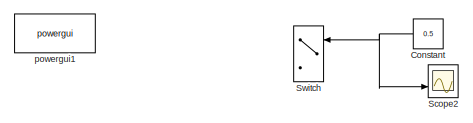
[diagram: root canvas - part 1/6, top right region]
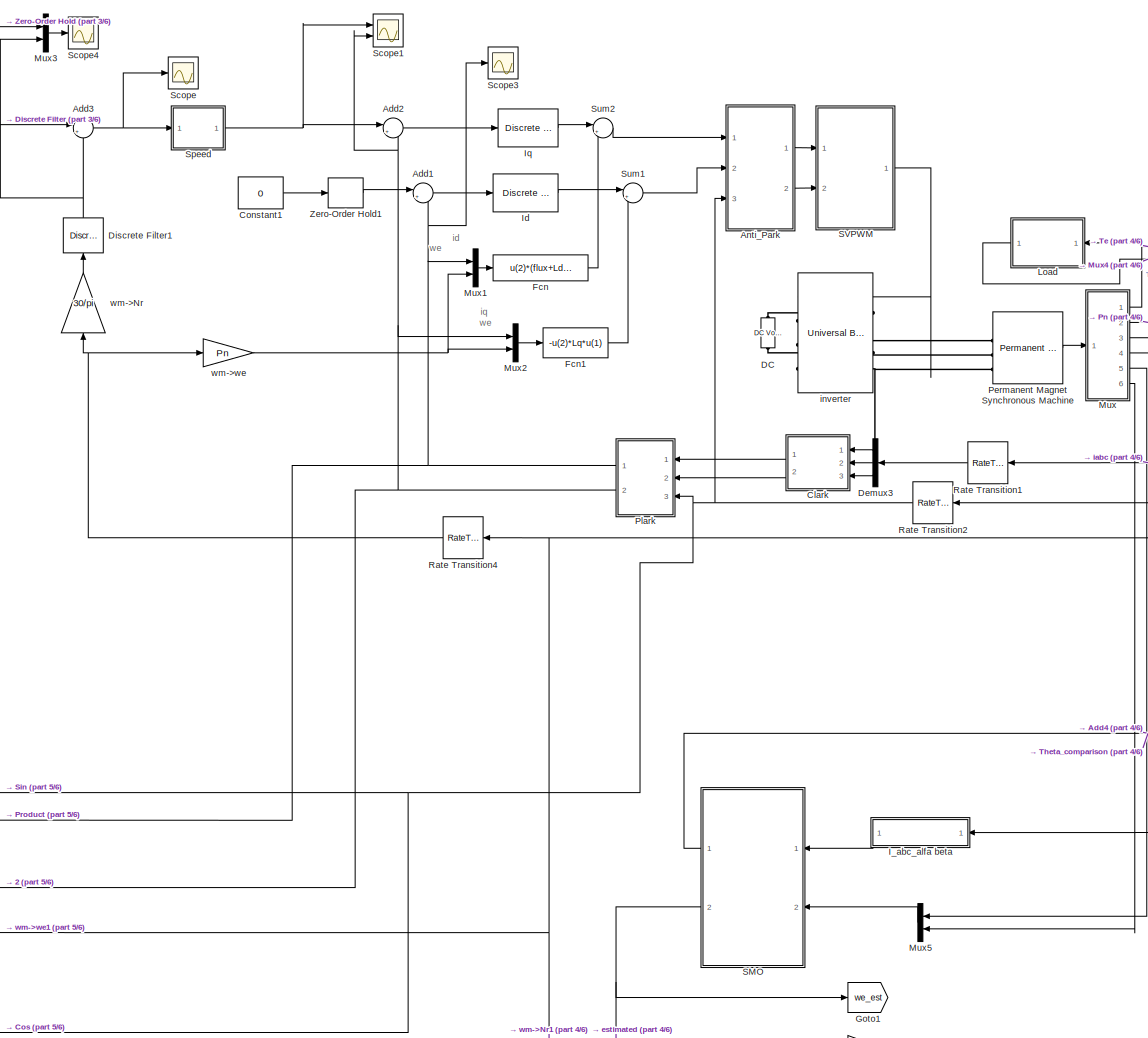
[diagram: root canvas - part 2/6, central region]
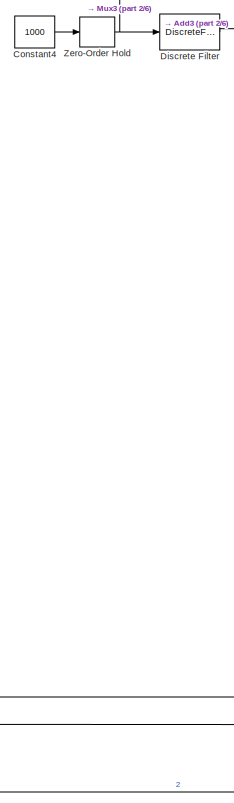
[diagram: root canvas - part 3/6, central region]
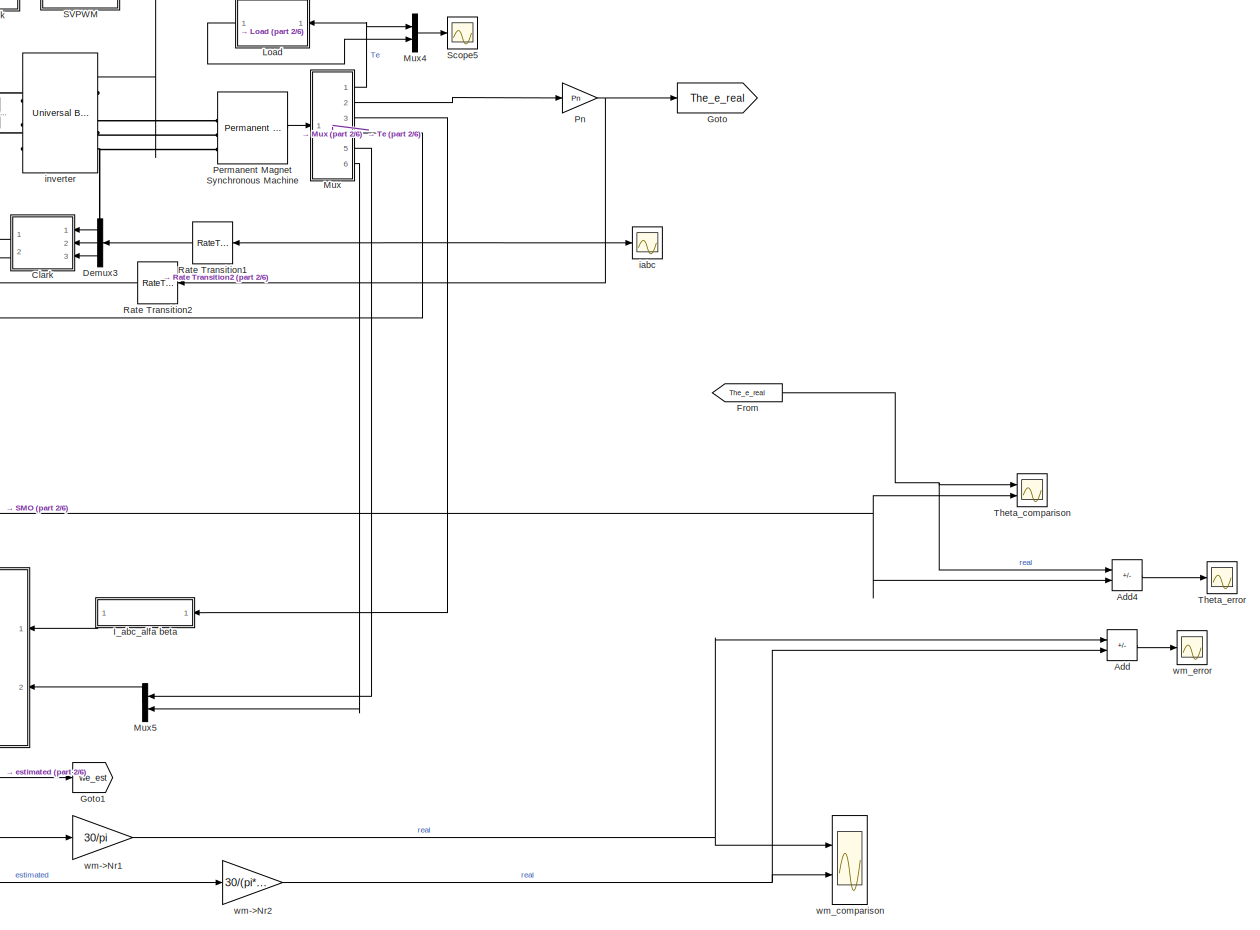
[diagram: root canvas - part 4/6, middle right region]
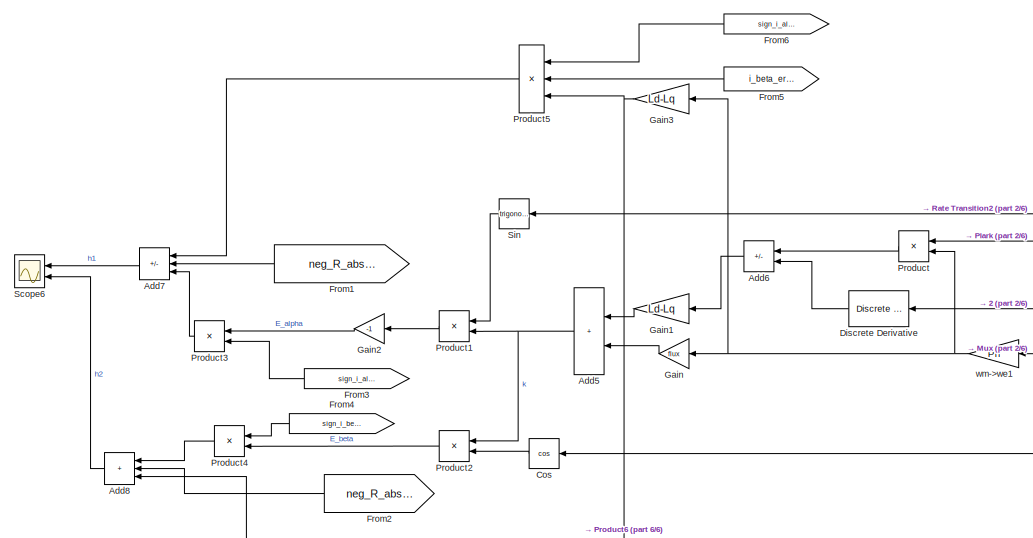
[diagram: root canvas - part 5/6, bottom left region]
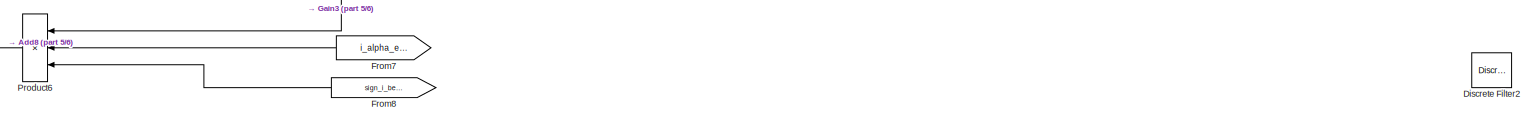
[diagram: root canvas - part 6/6, bottom left region]
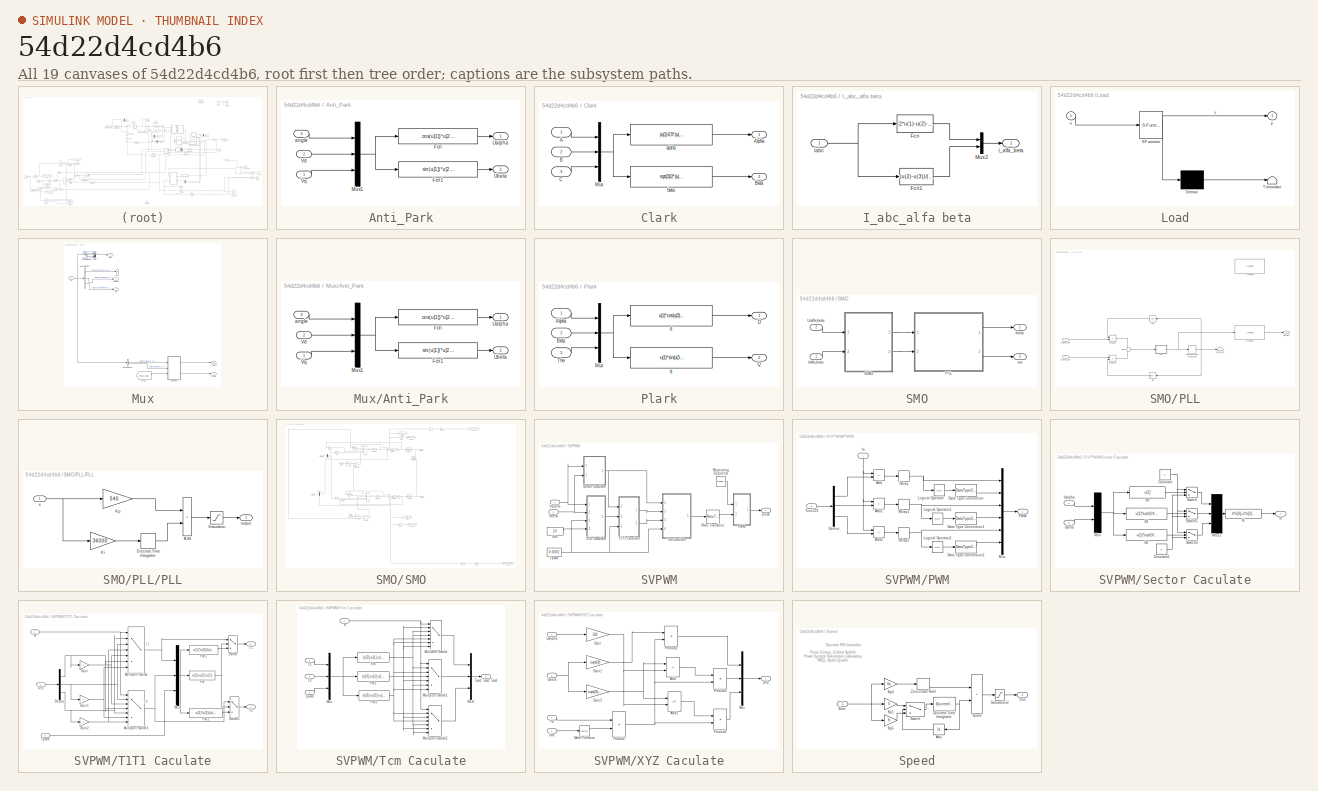
[diagram: thumbnail index - all 19 canvases of the model, root first then tree order]
MODEL slx_54d22d4cd4b6
KIND model
CONFIG AbsTol = auto
CONFIG EnableMultiTasking = on
CONFIG FixedStep = 1e-6
CONFIG MaxStep = auto
CONFIG MinStep = auto
CONFIG PreLoadFcn = flux =0.0037\nLd =1.2050e-04\nLq =1.8000e-04\nPn =4\nR =0.0830\nTs =5.0000e-05
CONFIG RelTol = 1e-4
CONFIG SampleTimeConstraint = Unconstrained
CONFIG SolverName = FixedStepAuto
CONFIG StartTime = 0.0
CONFIG StopTime = 0.5
BLOCK [Sum] Add
  IconShape = rectangular
  Inputs = +-
  Ports = [2, 1]
BLOCK [Sum] Add1
  Inputs = |+-
  Ports = [2, 1]
BLOCK [Sum] Add2
  Inputs = |+-
  Ports = [2, 1]
BLOCK [Sum] Add3
  Inputs = |+-
  Ports = [2, 1]
BLOCK [Sum] Add4
  IconShape = rectangular
  Inputs = +-
  Ports = [2, 1]
BLOCK [Sum] Add5
  IconShape = rectangular
  NameLocation = top
  Ports = [2, 1]
BLOCK [Sum] Add6
  IconShape = rectangular
  Inputs = +-
  NameLocation = top
  Ports = [2, 1]
BLOCK [Sum] Add7
  IconShape = rectangular
  Inputs = -++
  NameLocation = top
  Ports = [3, 1]
BLOCK [Sum] Add8
  IconShape = rectangular
  Inputs = +++
  NameLocation = top
  Ports = [3, 1]
BLOCK [SubSystem] Anti_Park
  Ports = [3, 2]
  RequestExecContextInheritance = off
BLOCK [Fcn] Anti_Park/Fcn
  Expr = cos(u[1])*u[2]-sin(u[1])*u[3]
BLOCK [Fcn] Anti_Park/Fcn1
  Expr = sin(u[1])*u[2]+cos(u[1])*u[3]
BLOCK [Mux] Anti_Park/Mux1
  DisplayOption = bar
  Inputs = 3
  Ports = [3, 1]
BLOCK [Outport] Anti_Park/Ualpha
BLOCK [Outport] Anti_Park/Ubeta
  Port = 2
BLOCK [Inport] Anti_Park/Vd
  Port = 2
BLOCK [Inport] Anti_Park/Vq
BLOCK [Inport] Anti_Park/angle
  Port = 3
BLOCK [SubSystem] Clark
  Ports = [3, 2]
  RequestExecContextInheritance = off
BLOCK [Inport] Clark/A
BLOCK [Outport] Clark/Alpha
BLOCK [Inport] Clark/B
  Port = 2
BLOCK [Outport] Clark/Beta
  Port = 2
BLOCK [Inport] Clark/C
  Port = 3
BLOCK [Mux] Clark/Mux
  DisplayOption = bar
  Inputs = 3
  Ports = [3, 1]
BLOCK [Fcn] Clark/alpha
  Expr = (u(1)-0.5*(u(2)+u(3)))*2/3
BLOCK [Fcn] Clark/beta
  Expr = sqrt(3)/2*(u(2)-u(3))*2/3
BLOCK [Constant] Constant
  Commented = on
  NameLocation = top
  Value = 0.5
BLOCK [Constant] Constant1
  Value = 0
BLOCK [Constant] Constant4
  Value = 1000
BLOCK [Trigonometry] Cos
  NameLocation = top
  Operator = cos
  Ports = [1, 1]
BLOCK [Reference] DC  REF=spsDCVoltageSourceLib/DC Voltage Source
  NameLocation = left
  Ports = [0, 0, 0, 0, 0, 1, 1]
  SourceBlock = spsDCVoltageSourceLib/DC Voltage Source
  SourceProductBaseCode = PS
  SourceType = DC Voltage Source
BLOCK [Demux] Demux3
  NameLocation = top
  Outputs = 3
  Ports = [1, 3]
BLOCK [Reference] Discrete Derivative  REF=simulink/Discrete/Discrete Derivative
  NameLocation = top
  Ports = [1, 1]
  SourceBlock = simulink/Discrete/Discrete Derivative
  SourceProductBaseCode = SL
  SourceType = Discrete Derivative
BLOCK [DiscreteFilter] Discrete Filter
  Denominator = [1 -0.995]
  InitialStates = 0.001
  InputPortMap = u0
  Numerator = [0 0.005]
  Ports = [1, 1]
BLOCK [DiscreteFilter] Discrete Filter1
  Denominator = [1 -0.95]
  InputPortMap = u0
  NameLocation = right
  Numerator = [0 0.05]
  Ports = [1, 1]
BLOCK [DiscreteFilter] Discrete Filter2
  Denominator = [1 -0.95]
  InputPortMap = u0
  NameLocation = left
  Numerator = [0 0.05]
  Ports = [1, 1]
BLOCK [Fcn] Fcn
  Expr = u(2)*(flux+Ld*u(1))
BLOCK [Fcn] Fcn1
  Expr = -u(2)*Lq*u(1)
BLOCK [From] From
  GotoTag = The_e_real
  TagVisibility = global
BLOCK [From] From1
  GotoTag = neg_R_abs_alpha_error
  NameLocation = top
  TagVisibility = global
BLOCK [From] From2
  GotoTag = neg_R_abs_beta_error
  NameLocation = top
  TagVisibility = global
BLOCK [From] From3
  GotoTag = sign_i_alpha_error
  NameLocation = top
  TagVisibility = global
BLOCK [From] From4
  GotoTag = sign_i_beta_error
  NameLocation = top
  TagVisibility = global
BLOCK [From] From5
  GotoTag = i_beta_error
  NameLocation = top
  TagVisibility = global
BLOCK [From] From6
  GotoTag = sign_i_alpha_error
  NameLocation = top
  TagVisibility = global
BLOCK [From] From7
  GotoTag = i_alpha_error
  NameLocation = top
  TagVisibility = global
BLOCK [From] From8
  GotoTag = sign_i_beta_error
  NameLocation = top
  TagVisibility = global
BLOCK [Gain] Gain
  Gain = flux
  NameLocation = top
BLOCK [Gain] Gain1
  Gain = Ld-Lq
  NameLocation = top
BLOCK [Gain] Gain2
  Gain = -1
  NameLocation = top
BLOCK [Gain] Gain3
  Gain = Ld-Lq
  NameLocation = top
BLOCK [Goto] Goto
  GotoTag = The_e_real
  TagVisibility = global
BLOCK [Goto] Goto1
  GotoTag = we_est
  TagVisibility = global
BLOCK [SubSystem] I_abc_alfa beta
  NameLocation = top
  Ports = [1, 1]
  RequestExecContextInheritance = off
BLOCK [Fcn] I_abc_alfa beta/Fcn
  Expr = (2*u(1)-u(2)-u(3))/3
BLOCK [Fcn] I_abc_alfa beta/Fcn1
  Expr = (u(2)-u(3))/(3^(1/2))
BLOCK [Mux] I_abc_alfa beta/Mux2
  DisplayOption = bar
  Inputs = 2
  Ports = [2, 1]
BLOCK [Outport] I_abc_alfa beta/i_alfa_beta
BLOCK [Inport] I_abc_alfa beta/iabc
BLOCK [Reference] Id  REF=powerlib_extras/Discrete 
Control Blocks/Discrete
PI Controller
  Ports = [1, 1]
  SourceBlock = powerlib_extras/Discrete \nControl Blocks/Discrete\nPI Controller
  SourceProductBaseCode = PS
  SourceType = Discrete PI Controller
BLOCK [Reference] Iq  REF=powerlib_extras/Discrete 
Control Blocks/Discrete
PI Controller
  Ports = [1, 1]
  SourceBlock = powerlib_extras/Discrete \nControl Blocks/Discrete\nPI Controller
  SourceProductBaseCode = PS
  SourceType = Discrete PI Controller
BLOCK [SubSystem] Load
  ErrorFcn = Stateflow.Translate.translate
  PermitHierarchicalResolution = ExplicitOnly
  Ports = [1, 1]
  RequestExecContextInheritance = off
  SFBlockType = MATLAB Function
  TreatAsAtomicUnit = on
BLOCK [Demux] Load/ Demux 
  Outputs = 1
  Ports = [1, 1]
BLOCK [S-Function] Load/ SFunction 
  EnableBusSupport = on
  FunctionName = sf_sfun
  PortCounts = [1 2]
  Ports = [1, 2]
  SFcnIsStateOwnerBlock = off
  SFunctionDeploymentMode = off
  Tag = Stateflow S-Function 2
BLOCK [Terminator] Load/ Terminator 
BLOCK [Inport] Load/u
BLOCK [Outport] Load/y
BLOCK [SubSystem] Mux
  Ports = [1, 6]
  RequestExecContextInheritance = off
BLOCK [SubSystem] Mux/Anti_Park
  Ports = [3, 2]
  RequestExecContextInheritance = off
BLOCK [Fcn] Mux/Anti_Park/Fcn
  Expr = cos(u[1])*u[2]-sin(u[1])*u[3]
BLOCK [Fcn] Mux/Anti_Park/Fcn1
  Expr = sin(u[1])*u[2]+cos(u[1])*u[3]
BLOCK [Mux] Mux/Anti_Park/Mux1
  DisplayOption = bar
  Inputs = 3
  Ports = [3, 1]
BLOCK [Outport] Mux/Anti_Park/Ualpha
BLOCK [Outport] Mux/Anti_Park/Ubeta
  Port = 2
BLOCK [Inport] Mux/Anti_Park/Vd
  Port = 2
BLOCK [Inport] Mux/Anti_Park/Vq
BLOCK [Inport] Mux/Anti_Park/angle
  Port = 3
BLOCK [BusSelector] Mux/Bus Selector
  OutputSignals = Stator current is_a (A),Stator current is_b (A),Stator current is_c (A)
  Ports = [1, 3]
BLOCK [BusSelector] Mux/Bus Selector1
  OutputSignals = Rotor speed wm (rad/s),Rotor angle thetam (rad),Electromagnetic torque Te (N*m)
  Ports = [1, 3]
BLOCK [BusSelector] Mux/Bus Selector2
  OutputSignals = Stator voltage Vs_q (V),Stator voltage Vs_d (V)
  Ports = [1, 2]
BLOCK [From] Mux/From
  GotoTag = The_e_real
  TagVisibility = global
BLOCK [Outport] Mux/Iabc
  Port = 3
BLOCK [Mux] Mux/Mux
  DisplayOption = bar
  Inputs = 3
  Ports = [3, 1]
BLOCK [Outport] Mux/Te
BLOCK [Outport] Mux/Thetam
  Port = 2
BLOCK [Outport] Mux/Wm
  Port = 4
BLOCK [Inport] Mux/m
BLOCK [Outport] Mux/u_alpha
  Port = 5
BLOCK [Outport] Mux/u_beta
  Port = 6
BLOCK [Mux] Mux1
  DisplayOption = bar
  Inputs = 2
  Ports = [2, 1]
BLOCK [Mux] Mux2
  DisplayOption = bar
  Inputs = 2
  Ports = [2, 1]
BLOCK [Mux] Mux3
  DisplayOption = bar
  Inputs = 2
  Ports = [2, 1]
BLOCK [Mux] Mux4
  DisplayOption = bar
  Inputs = 2
  Ports = [2, 1]
BLOCK [Mux] Mux5
  DisplayOption = bar
  Inputs = 2
  NameLocation = top
  Ports = [2, 1]
BLOCK [Reference] Permanent Magnet Synchronous Machine  REF=spsPermanentMagnetSynchronousMachineLib/Permanent Magnet
Synchronous Machine
  AttributesFormatString = \n
  Ports = [1, 1, 0, 0, 0, 3]
  SourceBlock = spsPermanentMagnetSynchronousMachineLib/Permanent Magnet\nSynchronous Machine
  SourceProductBaseCode = PS
  SourceType = Permanent Magnet Synchronous Machine
BLOCK [SubSystem] Plark
  Ports = [3, 2]
  RequestExecContextInheritance = off
BLOCK [Inport] Plark/Alpha
BLOCK [Inport] Plark/Beta
  Port = 2
BLOCK [Outport] Plark/D
BLOCK [Mux] Plark/Mux
  DisplayOption = bar
  Inputs = 3
  Ports = [3, 1]
BLOCK [Outport] Plark/Q
  Port = 2
BLOCK [Inport] Plark/The
  Port = 3
BLOCK [Fcn] Plark/d
  Expr = u(1)*cos(u(3))+u(2)*sin(u(3))
BLOCK [Fcn] Plark/q
  Expr = -u(1)*sin(u(3))+u(2)*cos(u(3))
BLOCK [Gain] Pn
  Gain = Pn
BLOCK [Product] Product
  NameLocation = top
  Ports = [2, 1]
BLOCK [Product] Product1
  NameLocation = top
  Ports = [2, 1]
BLOCK [Product] Product2
  NameLocation = top
  Ports = [2, 1]
BLOCK [Product] Product3
  NameLocation = top
  Ports = [2, 1]
BLOCK [Product] Product4
  NameLocation = top
  Ports = [2, 1]
BLOCK [Product] Product5
  Inputs = 3
  NameLocation = top
  Ports = [3, 1]
BLOCK [Product] Product6
  Inputs = 3
  NameLocation = top
  Ports = [3, 1]
BLOCK [RateTransition] Rate Transition1
  OutPortSampleTime = Ts
BLOCK [RateTransition] Rate Transition2
  OutPortSampleTime = Ts
BLOCK [RateTransition] Rate Transition4
  OutPortSampleTime = Ts
BLOCK [SubSystem] SMO
  NameLocation = top
  Ports = [2, 2]
  RequestExecContextInheritance = off
BLOCK [Inport] SMO/Ialfa,beta
BLOCK [SubSystem] SMO/PLL
  Ports = [2, 2]
  RequestExecContextInheritance = off
BLOCK [Trigonometry] SMO/PLL/Cos
  NameLocation = top
  Operator = cos
  Ports = [1, 1]
BLOCK [DiscreteIntegrator] SMO/PLL/Discrete-Time Integrator
  ICPrevOutput = DiscIntNeverNeededParam
  ICPrevScaledInput = DiscIntNeverNeededParam
  InitialConditionSetting = Auto
  Ports = [1, 1]
  SampleTime = -1
BLOCK [Reference] SMO/PLL/IIR Filter  REF=mcbcontrolslib/IIR Filter
  Ports = [1, 1]
  SourceBlock = mcbcontrolslib/IIR Filter
  SourceProductBaseCode = MT
  SourceType = IIR Filter
BLOCK [Reference] SMO/PLL/IIR Filter1  REF=mcbcontrolslib/IIR Filter
  Ports = [1, 1]
  SourceBlock = mcbcontrolslib/IIR Filter
  SourceProductBaseCode = MT
  SourceType = IIR Filter
BLOCK [SubSystem] SMO/PLL/PLL
  Ports = [1, 1]
  RequestExecContextInheritance = off
BLOCK [Sum] SMO/PLL/PLL/Add
  IconShape = rectangular
  Ports = [2, 1]
BLOCK [DiscreteIntegrator] SMO/PLL/PLL/Discrete-Time Integrator
  ICPrevOutput = DiscIntNeverNeededParam
  ICPrevScaledInput = DiscIntNeverNeededParam
  InitialConditionSetting = Auto
  Ports = [1, 1]
  SampleTime = -1
BLOCK [Gain] SMO/PLL/PLL/Ki
  Gain = 36000
BLOCK [Gain] SMO/PLL/PLL/Kp
  Gain = 540
BLOCK [Saturate] SMO/PLL/PLL/Saturation
  LowerLimit = -1000
  UpperLimit = 1000
BLOCK [Inport] SMO/PLL/PLL/e
BLOCK [Outport] SMO/PLL/PLL/output
BLOCK [Product] SMO/PLL/Product
  Ports = [2, 1]
BLOCK [Product] SMO/PLL/Product1
  Ports = [2, 1]
BLOCK [Trigonometry] SMO/PLL/Sin
  NameLocation = top
  Ports = [1, 1]
BLOCK [Sum] SMO/PLL/Sum
  Inputs = --
  Ports = [2, 1]
BLOCK [Inport] SMO/PLL/e_alpha_est
BLOCK [Inport] SMO/PLL/e_beta_est
  Port = 2
BLOCK [Outport] SMO/PLL/theta_est
BLOCK [Outport] SMO/PLL/we_est
  Port = 2
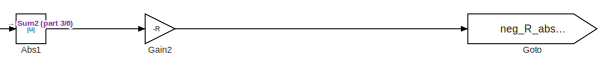
[diagram: SMO/SMO - part 1/6, top right region]
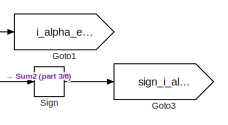
[diagram: SMO/SMO - part 2/6, top center region]
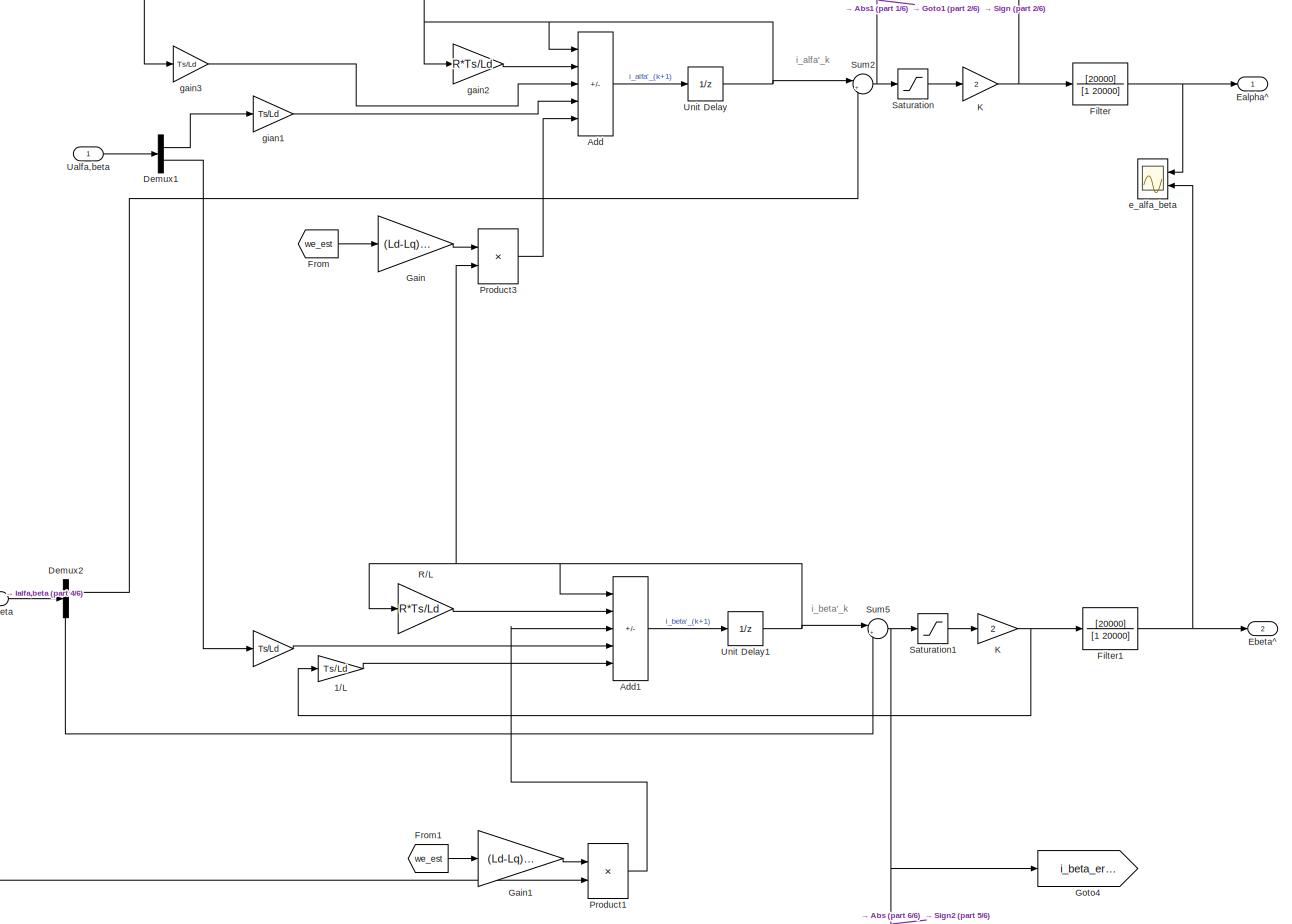
[diagram: SMO/SMO - part 3/6, central region]
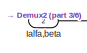
[diagram: SMO/SMO - part 4/6, middle left region]
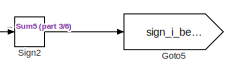
[diagram: SMO/SMO - part 5/6, bottom center region]
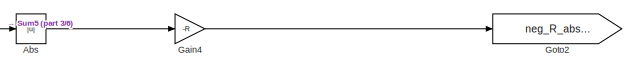
[diagram: SMO/SMO - part 6/6, bottom right region]
BLOCK [SubSystem] SMO/SMO
  Ports = [2, 2]
  RequestExecContextInheritance = off
BLOCK [Gain] SMO/SMO/ 
  Gain = Ts/Ld
BLOCK [Gain] SMO/SMO/ 1//L 
  Gain = Ts/Ld
BLOCK [Abs] SMO/SMO/Abs
  SaturateOnIntegerOverflow = off
BLOCK [Abs] SMO/SMO/Abs1
  SaturateOnIntegerOverflow = off
BLOCK [Sum] SMO/SMO/Add
  IconShape = rectangular
  Inputs = +--+-
  Ports = [5, 1]
BLOCK [Sum] SMO/SMO/Add1
  IconShape = rectangular
  Inputs = +-++-
  Ports = [5, 1]
BLOCK [Demux] SMO/SMO/Demux1
  Outputs = 2
  Ports = [1, 2]
BLOCK [Demux] SMO/SMO/Demux2
  Outputs = 2
  Ports = [1, 2]
BLOCK [Outport] SMO/SMO/Ealpha^
BLOCK [Outport] SMO/SMO/Ebeta^
  Port = 2
BLOCK [TransferFcn] SMO/SMO/Filter
  Denominator = [1 20000]
  Numerator = [20000]
BLOCK [TransferFcn] SMO/SMO/Filter1
  Denominator = [1 20000]
  Numerator = [20000]
BLOCK [From] SMO/SMO/From
  GotoTag = we_est
  TagVisibility = global
BLOCK [From] SMO/SMO/From1
  GotoTag = we_est
  TagVisibility = global
BLOCK [Gain] SMO/SMO/Gain
  Gain = (Ld-Lq)*Ts/Ld
BLOCK [Gain] SMO/SMO/Gain1
  Gain = (Ld-Lq)*Ts/Ld
BLOCK [Gain] SMO/SMO/Gain2
  Gain = -R
BLOCK [Gain] SMO/SMO/Gain4
  Gain = -R
BLOCK [Goto] SMO/SMO/Goto
  GotoTag = neg_R_abs_alpha_error
  TagVisibility = global
BLOCK [Goto] SMO/SMO/Goto1
  GotoTag = i_alpha_error
  TagVisibility = global
BLOCK [Goto] SMO/SMO/Goto2
  GotoTag = neg_R_abs_beta_error
  TagVisibility = global
BLOCK [Goto] SMO/SMO/Goto3
  GotoTag = sign_i_alpha_error
  TagVisibility = global
BLOCK [Goto] SMO/SMO/Goto4
  GotoTag = i_beta_error
  TagVisibility = global
BLOCK [Goto] SMO/SMO/Goto5
  GotoTag = sign_i_beta_error
  TagVisibility = global
BLOCK [Inport] SMO/SMO/Ialfa,beta
  Port = 2
BLOCK [Gain] SMO/SMO/K
  Gain = 2
BLOCK [Gain] SMO/SMO/K 
  Gain = 2
BLOCK [Product] SMO/SMO/Product1
  Ports = [2, 1]
  RndMeth = Zero
BLOCK [Product] SMO/SMO/Product3
  Ports = [2, 1]
  RndMeth = Zero
BLOCK [Gain] SMO/SMO/R//L 
  Gain = R*Ts/Ld
BLOCK [Saturate] SMO/SMO/Saturation
  LowerLimit = -2
  UpperLimit = 2
BLOCK [Saturate] SMO/SMO/Saturation1
  LowerLimit = -2
  UpperLimit = 2
BLOCK [Signum] SMO/SMO/Sign
  ZeroCross = off
BLOCK [Signum] SMO/SMO/Sign2
  ZeroCross = off
BLOCK [Sum] SMO/SMO/Sum2
  Inputs = |+-
  Ports = [2, 1]
BLOCK [Sum] SMO/SMO/Sum5
  Inputs = |+-
  Ports = [2, 1]
BLOCK [Inport] SMO/SMO/Ualfa,beta
BLOCK [UnitDelay] SMO/SMO/Unit Delay
  HasFrameUpgradeWarning = on
  SampleTime = -1
BLOCK [UnitDelay] SMO/SMO/Unit Delay1
  HasFrameUpgradeWarning = on
  SampleTime = -1
BLOCK [Scope] SMO/SMO/e_alfa_beta
  Floating = off
  NameLocation = top
  NumInputPorts = 2
  Ports = [2]
  ScopeSpecificationString = Simulink.scopes.TimeScopeBlockCfg('CurrentConfiguration', extmgr.ConfigurationSet(extmgr.Configuration('Core','General UI',true),extmgr.Configuration('Core','Source UI',true),extmgr.Configuration('Sources','WiredSimulink',true,'DataLoggingVariableName','ScopeData14','DataLoggingSaveFormat','Structure','DataLoggingDecimation','1','DataLoggingDecimateData',true),extmgr.Configuration('Visuals','Time ...<+2352ch>
BLOCK [Gain] SMO/SMO/gain2
  Gain = R*Ts/Ld
BLOCK [Gain] SMO/SMO/gain3
  Gain = Ts/Ld
BLOCK [Gain] SMO/SMO/gian1
  Gain = Ts/Ld
BLOCK [Inport] SMO/Ualfa,beta
  Port = 2
BLOCK [Outport] SMO/theta
BLOCK [Outport] SMO/we
  Port = 2
BLOCK [SubSystem] SVPWM
  Ports = [2, 1]
  RequestExecContextInheritance = off
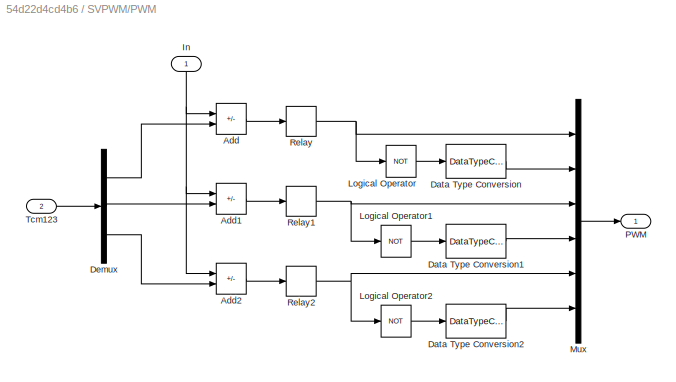
BLOCK [SubSystem] SVPWM/PWM
  Ports = [2, 1]
  RequestExecContextInheritance = off
BLOCK [Sum] SVPWM/PWM/Add
  IconShape = rectangular
  Inputs = +-
  Ports = [2, 1]
BLOCK [Sum] SVPWM/PWM/Add1
  IconShape = rectangular
  Inputs = +-
  Ports = [2, 1]
BLOCK [Sum] SVPWM/PWM/Add2
  IconShape = rectangular
  Inputs = +-
  Ports = [2, 1]
BLOCK [DataTypeConversion] SVPWM/PWM/Data Type Conversion
  OutDataTypeStr = double
  RndMeth = Floor
  SaturateOnIntegerOverflow = off
BLOCK [DataTypeConversion] SVPWM/PWM/Data Type Conversion1
  OutDataTypeStr = double
  RndMeth = Floor
  SaturateOnIntegerOverflow = off
BLOCK [DataTypeConversion] SVPWM/PWM/Data Type Conversion2
  OutDataTypeStr = double
  RndMeth = Floor
  SaturateOnIntegerOverflow = off
BLOCK [Demux] SVPWM/PWM/Demux
  Outputs = 3
  Ports = [1, 3]
BLOCK [Inport] SVPWM/PWM/In
  NameLocation = right
BLOCK [Logic] SVPWM/PWM/Logical Operator
  AllPortsSameDT = off
  Operator = NOT
  OutDataTypeStr = boolean
  Ports = [1, 1]
BLOCK [Logic] SVPWM/PWM/Logical Operator1
  AllPortsSameDT = off
  Operator = NOT
  OutDataTypeStr = boolean
  Ports = [1, 1]
BLOCK [Logic] SVPWM/PWM/Logical Operator2
  AllPortsSameDT = off
  Operator = NOT
  OutDataTypeStr = boolean
  Ports = [1, 1]
BLOCK [Mux] SVPWM/PWM/Mux
  DisplayOption = bar
  Inputs = 6
  Ports = [6, 1]
BLOCK [Outport] SVPWM/PWM/PWM
BLOCK [Relay] SVPWM/PWM/Relay
  OffSwitchValue = -eps
BLOCK [Relay] SVPWM/PWM/Relay1
  OffSwitchValue = -eps
BLOCK [Relay] SVPWM/PWM/Relay2
  OffSwitchValue = -eps
BLOCK [Inport] SVPWM/PWM/Tcm123
  Port = 2
BLOCK [RateTransition] SVPWM/Rate Transition
  OutPortSampleTime = 1e-6
BLOCK [Reference] SVPWM/Repeating Sequence  REF=simulink/Sources/Repeating
Sequence
  Ports = [0, 1]
  SourceBlock = simulink/Sources/Repeating\nSequence
  SourceProductBaseCode = SL
  SourceType = Repeating table
BLOCK [SubSystem] SVPWM/Sector Caculate
  Ports = [2, 1]
  RequestExecContextInheritance = off
BLOCK [Fcn] SVPWM/Sector Caculate/B0
  Expr = u[2]
BLOCK [Fcn] SVPWM/Sector Caculate/B1
  Expr = u[1]*sqrt(3/4)-0.5*u[2]
BLOCK [Fcn] SVPWM/Sector Caculate/B2
  Expr = -u[1]*sqrt(3/4)-u[2]*0.5
BLOCK [Constant] SVPWM/Sector Caculate/Constant
BLOCK [Constant] SVPWM/Sector Caculate/Constant1
  Value = 0
BLOCK [Mux] SVPWM/Sector Caculate/Mux
  Inputs = 2
  Ports = [2, 1]
BLOCK [Mux] SVPWM/Sector Caculate/Mux1
  Inputs = 3
  Ports = [3, 1]
BLOCK [Fcn] SVPWM/Sector Caculate/N
  Expr = 4*u[3]+2*u[2]+u[1]
BLOCK [Outport] SVPWM/Sector Caculate/N 
BLOCK [Switch] SVPWM/Sector Caculate/Switch
  InputSameDT = off
  SaturateOnIntegerOverflow = off
BLOCK [Switch] SVPWM/Sector Caculate/Switch1
  InputSameDT = off
  SaturateOnIntegerOverflow = off
BLOCK [Switch] SVPWM/Sector Caculate/Switch2
  InputSameDT = off
  SaturateOnIntegerOverflow = off
BLOCK [Inport] SVPWM/Sector Caculate/Ualpha
BLOCK [Inport] SVPWM/Sector Caculate/Ubeta
  Port = 2
BLOCK [SubSystem] SVPWM/T1T1 Caculate
  Ports = [3, 2]
  RequestExecContextInheritance = off
BLOCK [Demux] SVPWM/T1T1 Caculate/Demux
  Outputs = 3
  Ports = [1, 3]
BLOCK [Fcn] SVPWM/T1T1 Caculate/Fcn
  Expr = u(3)-u(2)-u(1)
BLOCK [Fcn] SVPWM/T1T1 Caculate/Fcn1
  Expr = u(1)*u(3)/(u(1)+u(2))
BLOCK [Fcn] SVPWM/T1T1 Caculate/Fcn2
  Expr = u(2)*u(3)/(u(1)+u(2))
BLOCK [Gain] SVPWM/T1T1 Caculate/Gain
  Gain = -1
BLOCK [Gain] SVPWM/T1T1 Caculate/Gain1
  Gain = -1
BLOCK [Gain] SVPWM/T1T1 Caculate/Gain2
  Gain = -1
BLOCK [MultiPortSwitch] SVPWM/T1T1 Caculate/Multiport Switch
  InputSameDT = off
  Inputs = 6
  Ports = [7, 1]
  SaturateOnIntegerOverflow = off
BLOCK [MultiPortSwitch] SVPWM/T1T1 Caculate/Multiport Switch1
  InputSameDT = off
  Inputs = 6
  Ports = [7, 1]
  SaturateOnIntegerOverflow = off
BLOCK [Mux] SVPWM/T1T1 Caculate/Mux
  DisplayOption = bar
  Inputs = 3
  Ports = [3, 1]
BLOCK [Inport] SVPWM/T1T1 Caculate/N
BLOCK [Switch] SVPWM/T1T1 Caculate/Switch
  InputSameDT = off
  SaturateOnIntegerOverflow = off
BLOCK [Switch] SVPWM/T1T1 Caculate/Switch1
  Criteria = u2 > Threshold
  InputSameDT = off
  SaturateOnIntegerOverflow = off
BLOCK [Outport] SVPWM/T1T1 Caculate/T1
BLOCK [Outport] SVPWM/T1T1 Caculate/T2
  Port = 2
BLOCK [Inport] SVPWM/T1T1 Caculate/Tpwm
  Port = 3
BLOCK [Inport] SVPWM/T1T1 Caculate/XYZ
  Port = 2
BLOCK [SubSystem] SVPWM/Tcm Caculate
  Ports = [4, 1]
  RequestExecContextInheritance = off
BLOCK [Fcn] SVPWM/Tcm Caculate/Fcn
  Expr = (u[3]-u[1]-u[2])/4
BLOCK [Fcn] SVPWM/Tcm Caculate/Fcn1
  Expr = (u[3]+u[1]-u[2])/4
BLOCK [Fcn] SVPWM/Tcm Caculate/Fcn2
  Expr = (u[3]+u[2]+u[1])/4
BLOCK [MultiPortSwitch] SVPWM/Tcm Caculate/Multiport Switch
  InputSameDT = off
  Inputs = 6
  Ports = [7, 1]
  SaturateOnIntegerOverflow = off
BLOCK [MultiPortSwitch] SVPWM/Tcm Caculate/Multiport Switch1
  InputSameDT = off
  Inputs = 6
  Ports = [7, 1]
  SaturateOnIntegerOverflow = off
BLOCK [MultiPortSwitch] SVPWM/Tcm Caculate/Multiport Switch2
  InputSameDT = off
  Inputs = 6
  Ports = [7, 1]
  SaturateOnIntegerOverflow = off
BLOCK [Mux] SVPWM/Tcm Caculate/Mux
  DisplayOption = bar
  Inputs = 3
  Ports = [3, 1]
BLOCK [Mux] SVPWM/Tcm Caculate/Mux1
  DisplayOption = bar
  Inputs = 3
  Ports = [3, 1]
BLOCK [Inport] SVPWM/Tcm Caculate/N
BLOCK [Inport] SVPWM/Tcm Caculate/T1
  Port = 2
BLOCK [Inport] SVPWM/Tcm Caculate/T2
  Port = 3
BLOCK [Outport] SVPWM/Tcm Caculate/Tcm1 Tcm2 Tcm3
BLOCK [Inport] SVPWM/Tcm Caculate/Tpwm
  Port = 4
BLOCK [Constant] SVPWM/Tpwm
  Value = 0.0001
BLOCK [Inport] SVPWM/Valpha
BLOCK [Inport] SVPWM/Vbeta
  Port = 2
BLOCK [Constant] SVPWM/Vdc
  Value = 24
BLOCK [SubSystem] SVPWM/XYZ Caculate
  Ports = [4, 1]
  RequestExecContextInheritance = off
BLOCK [Sum] SVPWM/XYZ Caculate/Add
  IconShape = rectangular
  Ports = [2, 1]
BLOCK [Sum] SVPWM/XYZ Caculate/Add1
  IconShape = rectangular
  Inputs = +-
  Ports = [2, 1]
BLOCK [Gain] SVPWM/XYZ Caculate/Gain
  Gain = 3/2
BLOCK [Gain] SVPWM/XYZ Caculate/Gain1
  Gain = sqrt(3)
BLOCK [Gain] SVPWM/XYZ Caculate/Gain2
  Gain = sqrt(3)/2
BLOCK [Math] SVPWM/XYZ Caculate/Math Function
  Operator = reciprocal
  Ports = [1, 1]
  SignedPower = on
BLOCK [Mux] SVPWM/XYZ Caculate/Mux
  DisplayOption = bar
  Inputs = 3
  Ports = [3, 1]
BLOCK [Product] SVPWM/XYZ Caculate/Product
  Ports = [2, 1]
  RndMeth = Zero
BLOCK [Product] SVPWM/XYZ Caculate/Product1
  Ports = [2, 1]
  RndMeth = Zero
BLOCK [Product] SVPWM/XYZ Caculate/Product2
  Ports = [2, 1]
  RndMeth = Zero
BLOCK [Product] SVPWM/XYZ Caculate/Product3
  Ports = [2, 1]
  RndMeth = Zero
BLOCK [Inport] SVPWM/XYZ Caculate/Ts
  Port = 3
BLOCK [Inport] SVPWM/XYZ Caculate/Ualpha
BLOCK [Inport] SVPWM/XYZ Caculate/Ubeta
  Port = 2
BLOCK [Inport] SVPWM/XYZ Caculate/Udc
  Port = 4
BLOCK [Outport] SVPWM/XYZ Caculate/XYZ
BLOCK [Outport] SVPWM/pulse
BLOCK [Scope] Scope
  Floating = off
  NumInputPorts = 1
  Ports = [1]
  ScopeSpecificationString = Simulink.scopes.TimeScopeBlockCfg('CurrentConfiguration', extmgr.ConfigurationSet(extmgr.Configuration('Core','General UI',true),extmgr.Configuration('Core','Source UI',true),extmgr.Configuration('Sources','WiredSimulink',true,'DataLoggingVariableName','ScopeData1'),extmgr.Configuration('Visuals','Time Domain',true,'SerializedDisplays',{struct('MinYLimReal','-50.10326','MaxYLimReal','217.5982','YL...<+1423ch>
BLOCK [Scope] Scope1
  Floating = off
  NumInputPorts = 2
  Ports = [2]
  ScopeSpecificationString = Simulink.scopes.TimeScopeBlockCfg('CurrentConfiguration', extmgr.ConfigurationSet(extmgr.Configuration('Core','General UI',true),extmgr.Configuration('Core','Source UI',true),extmgr.Configuration('Sources','WiredSimulink',true,'DataLoggingVariableName','ScopeData1'),extmgr.Configuration('Visuals','Time Domain',true,'SerializedDisplays',{struct('MinYLimReal','-3.15819','MaxYLimReal','28.42368','YLa...<+1402ch>
BLOCK [Scope] Scope2
  Commented = on
  Floating = off
  NumInputPorts = 2
  Ports = [2]
  ScopeSpecificationString = Simulink.scopes.TimeScopeBlockCfg('CurrentConfiguration', extmgr.ConfigurationSet(extmgr.Configuration('Core','General UI',true),extmgr.Configuration('Core','Source UI',true),extmgr.Configuration('Sources','WiredSimulink',true,'DataLoggingVariableName','ScopeData1'),extmgr.Configuration('Visuals','Time Domain',true,'SerializedDisplays',{struct('MinYLimReal','-0.07429','MaxYLimReal','0.66858','YLab...<+1473ch>
BLOCK [Scope] Scope3
  Floating = off
  NumInputPorts = 1
  Ports = [1]
  ScopeSpecificationString = Simulink.scopes.TimeScopeBlockCfg('CurrentConfiguration', extmgr.ConfigurationSet(extmgr.Configuration('Core','General UI',true),extmgr.Configuration('Core','Source UI',true),extmgr.Configuration('Sources','WiredSimulink',true,'DataLoggingVariableName','ScopeData2'),extmgr.Configuration('Visuals','Time Domain',true,'SerializedDisplays',{struct('MinYLimReal','-3.13832','MaxYLimReal','2.75916','YLab...<+1491ch>
BLOCK [Scope] Scope4
  Floating = off
  NumInputPorts = 1
  Ports = [1]
  ScopeSpecificationString = Simulink.scopes.TimeScopeBlockCfg('CurrentConfiguration', extmgr.ConfigurationSet(extmgr.Configuration('Core','General UI',true),extmgr.Configuration('Core','Source UI',true),extmgr.Configuration('Sources','WiredSimulink',true,'DataLoggingVariableName','ScopeData1'),extmgr.Configuration('Visuals','Time Domain',true,'SerializedDisplays',{struct('MinYLimReal','-125.72709','MaxYLimReal','1131.54385',...<+1511ch>
BLOCK [Scope] Scope5
  Floating = off
  NumInputPorts = 1
  Ports = [1]
  ScopeSpecificationString = Simulink.scopes.TimeScopeBlockCfg('CurrentConfiguration', extmgr.ConfigurationSet(extmgr.Configuration('Core','General UI',true),extmgr.Configuration('Core','Source UI',true),extmgr.Configuration('Sources','WiredSimulink',true,'DataLoggingVariableName','ScopeData1'),extmgr.Configuration('Visuals','Time Domain',true,'SerializedDisplays',{struct('MinYLimReal','-0.07089','MaxYLimReal','0.638','YLabel...<+1465ch>
BLOCK [Scope] Scope6
  Floating = off
  NameLocation = top
  NumInputPorts = 2
  Ports = [2]
  ScopeSpecificationString = Simulink.scopes.TimeScopeBlockCfg('CurrentConfiguration', extmgr.ConfigurationSet(extmgr.Configuration('Core','General UI',true),extmgr.Configuration('Core','Source UI',true),extmgr.Configuration('Sources','WiredSimulink',true,'DataLoggingVariableName','ScopeData1'),extmgr.Configuration('Visuals','Time Domain',true,'SerializedDisplays',{struct('MinYLimReal','-2.07687','MaxYLimReal','2.07685','YLab...<+2061ch>
BLOCK [Trigonometry] Sin
  NameLocation = top
  Ports = [1, 1]
BLOCK [SubSystem] Speed
  AncestorBlock = powerlib_extras/Discrete \nControl Blocks/Discrete\nPI Controller
  DialogController = POWERSYS.PowerSysDialog
  Ports = [1, 1]
  RequestExecContextInheritance = off
BLOCK [Abs] Speed/Abs
  SaturateOnIntegerOverflow = off
BLOCK [DiscreteIntegrator] Speed/Discrete-Time Integrator
  ICPrevOutput = DiscIntNeverNeededParam
  ICPrevScaledInput = DiscIntNeverNeededParam
  InitialCondition = Init
  LimitOutput = on
  LowerSaturationLimit = LowerLimit
  Ports = [1, 1]
  SampleTime = Ts
  UpperSaturationLimit = UpperLimit
BLOCK [Inport] Speed/Error
  SampleTime = Ts
BLOCK [Gain] Speed/Kp1
  Gain = 0
  OutDataTypeStr = Inherit: Same as input
  ParamDataTypeStr = Inherit: Same as input
  SampleTime = Ts
  SaturateOnIntegerOverflow = on
BLOCK [Gain] Speed/Kp4
  Gain = Kp
  OutDataTypeStr = Inherit: Same as input
  ParamDataTypeStr = Inherit: Same as input
  SampleTime = Ts
  SaturateOnIntegerOverflow = on
BLOCK [Gain] Speed/Kp5
  Gain = Ki
  OutDataTypeStr = Inherit: Same as input
  ParamDataTypeStr = Inherit: Same as input
  SampleTime = Ts
  SaturateOnIntegerOverflow = on
BLOCK [Outport] Speed/Out
  InitialOutput = 0
  SampleTime = Ts
  VectorParamsAs1DForOutWhenUnconnected = off
BLOCK [Saturate] Speed/Saturation2
  LowerLimit = LowerLimit
  NameLocation = top
  SampleTime = Ts
  UpperLimit = UpperLimit
BLOCK [Sum] Speed/Sum6
  IconShape = rectangular
  InputSameDT = on
  OutDataTypeStr = Inherit: Same as first input
  Ports = [2, 1]
  SampleTime = Ts
  SaturateOnIntegerOverflow = on
BLOCK [Switch] Speed/Switch
  Criteria = u2 > Threshold
  InputSameDT = off
  SaturateOnIntegerOverflow = off
  Threshold = UpperLimit
BLOCK [ZeroOrderHold] Speed/Zero-Order Hold
  SampleTime = Ts
BLOCK [Sum] Sum1
  Inputs = |++
  Ports = [2, 1]
BLOCK [Sum] Sum2
  Inputs = |++
  Ports = [2, 1]
BLOCK [Switch] Switch
  Commented = on
  Criteria = u2 > Threshold
  InputSameDT = off
  NameLocation = top
  SaturateOnIntegerOverflow = off
  Threshold = 0.5
BLOCK [Scope] Theta_comparison
  Floating = off
  NumInputPorts = 2
  Ports = [2]
  ScopeSpecificationString = Simulink.scopes.TimeScopeBlockCfg('CurrentConfiguration', extmgr.ConfigurationSet(extmgr.Configuration('Core','General UI',true),extmgr.Configuration('Core','Source UI',true),extmgr.Configuration('Sources','WiredSimulink',true,'DataLoggingVariableName','ScopeData1'),extmgr.Configuration('Visuals','Time Domain',true,'SerializedDisplays',{struct('MinYLimReal','-25.6519','MaxYLimReal','230.86581','YL...<+1487ch>
BLOCK [Scope] Theta_error
  Floating = off
  NumInputPorts = 1
  Ports = [1]
  ScopeSpecificationString = Simulink.scopes.TimeScopeBlockCfg('CurrentConfiguration', extmgr.ConfigurationSet(extmgr.Configuration('Core','General UI',true),extmgr.Configuration('Core','Source UI',true),extmgr.Configuration('Sources','WiredSimulink',true,'DataLoggingVariableName','ScopeData2'),extmgr.Configuration('Visuals','Time Domain',true,'SerializedDisplays',{struct('MinYLimReal','-0.09893','MaxYLimReal','0.4502','YLabe...<+1444ch>
BLOCK [ZeroOrderHold] Zero-Order Hold
  SampleTime = Ts
BLOCK [ZeroOrderHold] Zero-Order Hold1
  SampleTime = Ts
BLOCK [Scope] iabc
  Floating = off
  NumInputPorts = 1
  Ports = [1]
  ScopeSpecificationString = Simulink.scopes.TimeScopeBlockCfg('CurrentConfiguration', extmgr.ConfigurationSet(extmgr.Configuration('Core','General UI',true),extmgr.Configuration('Core','Source UI',true),extmgr.Configuration('Sources','WiredSimulink',true,'DataLogging',true,'DataLoggingVariableName','Iabc','DataLoggingSaveFormat','StructureWithTime','DataLoggingDecimation','1','DataLoggingDecimateData',true),extmgr.Configurat...<+1764ch>
BLOCK [Reference] inverter  REF=spsUniversalBridgeLib/Universal Bridge
  NameLocation = top
  Ports = [1, 0, 0, 0, 0, 3, 2]
  SourceBlock = spsUniversalBridgeLib/Universal Bridge
  SourceProductBaseCode = PS
  SourceType = Universal Bridge
BLOCK [Reference] powergui1  REF=spspowerguiLib/powergui
  Ports = []
  Priority = 1
  SourceBlock = spspowerguiLib/powergui
  SourceProductBaseCode = PS
  SourceType = PSB option menu block
BLOCK [Gain] wm->Nr
  Gain = 30/pi
  NameLocation = right
BLOCK [Gain] wm->Nr1
  Gain = 30/pi
BLOCK [Gain] wm->Nr2
  Gain = 30/(pi*Pn)
BLOCK [Gain] wm->we
  Gain = Pn
BLOCK [Gain] wm->we1
  Gain = Pn
  NameLocation = top
BLOCK [Scope] wm_comparison
  Floating = off
  NumInputPorts = 2
  Ports = [2]
  ScopeSpecificationString = Simulink.scopes.TimeScopeBlockCfg('CurrentConfiguration', extmgr.ConfigurationSet(extmgr.Configuration('Core','General UI',true),extmgr.Configuration('Core','Source UI',true),extmgr.Configuration('Sources','WiredSimulink',true,'DataLoggingVariableName','ScopeData2'),extmgr.Configuration('Visuals','Time Domain',true,'SerializedDisplays',{struct('MinYLimReal','-134.27157','MaxYLimReal','1174.2118','...<+1492ch>
BLOCK [Scope] wm_error
  Floating = off
  NumInputPorts = 1
  Ports = [1]
  ScopeSpecificationString = Simulink.scopes.TimeScopeBlockCfg('CurrentConfiguration', extmgr.ConfigurationSet(extmgr.Configuration('Core','General UI',true),extmgr.Configuration('Core','Source UI',true),extmgr.Configuration('Sources','WiredSimulink',true,'DataLoggingVariableName','ScopeData1'),extmgr.Configuration('Visuals','Time Domain',true,'SerializedDisplays',{struct('MinYLimReal','-831.65134','MaxYLimReal','694.14616','...<+1484ch>
ANNOTATION (root): id
ANNOTATION (root): iq
ANNOTATION (root): we
ANNOTATION SMO/SMO: i_alfa'_k
ANNOTATION SMO/SMO: i_beta'_k
ANNOTATION SVPWM/T1T1 Caculate: T1
ANNOTATION SVPWM/T1T1 Caculate: T2
ANNOTATION Speed: Discrete PID Controller
ANNOTATION Speed: Pierre Giroux, Gilbert Sybille Power System Simulation Laboratory IREQ, Hydro-Quebc
LINE Add1:1 -> Id:1
LINE Add2:1 -> Iq:1
NET Add3:1 -> Scope:1, Speed:1
LINE Add4:1 -> Theta_error:1
NET Add5:1 -> Product1:2, Product2:1
LINE Add6:1 -> Gain1:1
LINE Add7:1 -> Scope6:1
LINE Add8:1 -> Scope6:2
LINE Add:1 -> wm_error:1
LINE Anti_Park/Fcn1:1 -> Anti_Park/Ubeta:1
LINE Anti_Park/Fcn:1 -> Anti_Park/Ualpha:1
NET Anti_Park/Mux1:1 -> Anti_Park/Fcn1:1, Anti_Park/Fcn:1
LINE Anti_Park/Vd:1 -> Anti_Park/Mux1:2
LINE Anti_Park/Vq:1 -> Anti_Park/Mux1:3
LINE Anti_Park/angle:1 -> Anti_Park/Mux1:1
LINE Anti_Park:1 -> SVPWM:1
LINE Anti_Park:2 -> SVPWM:2
LINE Clark/A:1 -> Clark/Mux:1
LINE Clark/B:1 -> Clark/Mux:2
LINE Clark/C:1 -> Clark/Mux:3
NET Clark/Mux:1 -> Clark/alpha:1, Clark/beta:1
LINE Clark/alpha:1 -> Clark/Alpha:1
LINE Clark/beta:1 -> Clark/Beta:1
LINE Clark:1 -> Plark:1
LINE Clark:2 -> Plark:2
LINE Constant1:1 -> Zero-Order Hold1:1
LINE Constant4:1 -> Zero-Order Hold:1
NET Constant:1 -> Scope2:2, Switch:1
LINE Cos:1 -> Product2:2
LINE Demux3:1 -> Clark:1
LINE Demux3:2 -> Clark:2
LINE Demux3:3 -> Clark:3
LINE Discrete Derivative:1 -> Add6:2
NET Discrete Filter1:1 -> Add3:2, Mux3:2
LINE Discrete Filter:1 -> Add3:1
LINE Fcn1:1 -> Sum1:2
LINE Fcn:1 -> Sum2:2
LINE From1:1 -> Add7:2
LINE From2:1 -> Add8:2
LINE From3:1 -> Product3:2
LINE From4:1 -> Product4:1
LINE From5:1 -> Product5:2
LINE From6:1 -> Product5:1
LINE From7:1 -> Product6:2
LINE From8:1 -> Product6:3
NET From:1 -> Add4:1, Theta_comparison:1
LINE Gain1:1 -> Add5:1
LINE Gain2:1 -> Product3:1
NET Gain3:1 -> Product5:3, Product6:1
LINE Gain:1 -> Add5:2
LINE I_abc_alfa beta/Fcn1:1 -> I_abc_alfa beta/Mux2:2
LINE I_abc_alfa beta/Fcn:1 -> I_abc_alfa beta/Mux2:1
LINE I_abc_alfa beta/Mux2:1 -> I_abc_alfa beta/i_alfa_beta:1
NET I_abc_alfa beta/iabc:1 -> I_abc_alfa beta/Fcn1:1, I_abc_alfa beta/Fcn:1
LINE I_abc_alfa beta:1 -> SMO:1
LINE Id:1 -> Sum1:1
LINE Iq:1 -> Sum2:1
LINE Load:1 -> Mux4:2
LINE Mux/Anti_Park/Fcn1:1 -> Mux/Anti_Park/Ubeta:1
LINE Mux/Anti_Park/Fcn:1 -> Mux/Anti_Park/Ualpha:1
NET Mux/Anti_Park/Mux1:1 -> Mux/Anti_Park/Fcn1:1, Mux/Anti_Park/Fcn:1
LINE Mux/Anti_Park/Vd:1 -> Mux/Anti_Park/Mux1:2
LINE Mux/Anti_Park/Vq:1 -> Mux/Anti_Park/Mux1:3
LINE Mux/Anti_Park/angle:1 -> Mux/Anti_Park/Mux1:1
LINE Mux/Anti_Park:1 -> Mux/u_alpha:1
LINE Mux/Anti_Park:2 -> Mux/u_beta:1
LINE Mux/Bus Selector1:1 -> Mux/Wm:1
LINE Mux/Bus Selector1:2 -> Mux/Thetam:1
LINE Mux/Bus Selector1:3 -> Mux/Te:1
LINE Mux/Bus Selector2:1 -> Mux/Anti_Park:1
LINE Mux/Bus Selector2:2 -> Mux/Anti_Park:2
LINE Mux/Bus Selector:1 -> Mux/Mux:1
LINE Mux/Bus Selector:2 -> Mux/Mux:2
LINE Mux/Bus Selector:3 -> Mux/Mux:3
LINE Mux/From:1 -> Mux/Anti_Park:3
LINE Mux/Mux:1 -> Mux/Iabc:1
NET Mux/m:1 -> Mux/Bus Selector1:1, Mux/Bus Selector2:1, Mux/Bus Selector:1
LINE Mux1:1 -> Fcn:1
LINE Mux2:1 -> Fcn1:1
LINE Mux3:1 -> Scope4:1
LINE Mux4:1 -> Scope5:1
LINE Mux5:1 -> SMO:2
NET Mux:1 -> Load:1, Mux4:1
LINE Mux:2 -> Pn:1
NET Mux:3 -> I_abc_alfa beta:1, Rate Transition1:1, iabc:1
NET Mux:4 -> Rate Transition4:1, wm->Nr1:1, wm->we1:1
LINE Mux:5 -> Mux5:1
LINE Mux:6 -> Mux5:2
LINE Permanent Magnet Synchronous Machine:1 -> Mux:1
LINE Plark/Alpha:1 -> Plark/Mux:1
LINE Plark/Beta:1 -> Plark/Mux:2
NET Plark/Mux:1 -> Plark/d:1, Plark/q:1
LINE Plark/The:1 -> Plark/Mux:3
LINE Plark/d:1 -> Plark/D:1
LINE Plark/q:1 -> Plark/Q:1
NET Plark:1 -> Add1:2, Mux1:1, Product:1, Scope3:1
NET Plark:2 -> Add2:2, Discrete Derivative:1, Mux2:1, Scope1:2
NET Pn:1 -> Goto:1, Rate Transition2:1
LINE Product1:1 -> Gain2:1
LINE Product2:1 -> Product4:2
LINE Product3:1 -> Add7:3
LINE Product4:1 -> Add8:1
LINE Product5:1 -> Add7:1
LINE Product6:1 -> Add8:3
LINE Product:1 -> Add6:1
LINE Rate Transition1:1 -> Demux3:1
NET Rate Transition2:1 -> Anti_Park:3, Cos:1, Plark:3, Sin:1
NET Rate Transition4:1 -> wm->Nr:1, wm->we:1
LINE SMO/Ialfa,beta:1 -> SMO/SMO:2
LINE SMO/PLL/Cos:1 -> SMO/PLL/Product:1
NET SMO/PLL/Discrete-Time Integrator:1 -> SMO/PLL/Cos:1, SMO/PLL/Sin:1, SMO/PLL/theta_est:1
LINE SMO/PLL/IIR Filter1:1 -> SMO/PLL/we_est:1
LINE SMO/PLL/PLL/Add:1 -> SMO/PLL/PLL/Saturation:1
LINE SMO/PLL/PLL/Discrete-Time Integrator:1 -> SMO/PLL/PLL/Add:2
LINE SMO/PLL/PLL/Ki:1 -> SMO/PLL/PLL/Discrete-Time Integrator:1
LINE SMO/PLL/PLL/Kp:1 -> SMO/PLL/PLL/Add:1
LINE SMO/PLL/PLL/Saturation:1 -> SMO/PLL/PLL/output:1
NET SMO/PLL/PLL/e:1 -> SMO/PLL/PLL/Ki:1, SMO/PLL/PLL/Kp:1
NET SMO/PLL/PLL:1 -> SMO/PLL/Discrete-Time Integrator:1, SMO/PLL/IIR Filter1:1
LINE SMO/PLL/Product1:1 -> SMO/PLL/Sum:2
LINE SMO/PLL/Product:1 -> SMO/PLL/Sum:1
LINE SMO/PLL/Sin:1 -> SMO/PLL/Product1:2
LINE SMO/PLL/Sum:1 -> SMO/PLL/PLL:1
LINE SMO/PLL/e_alpha_est:1 -> SMO/PLL/Product:2
LINE SMO/PLL/e_beta_est:1 -> SMO/PLL/Product1:1
LINE SMO/PLL:1 -> SMO/theta:1
LINE SMO/PLL:2 -> SMO/we:1
LINE SMO/SMO/ 1//L :1 -> SMO/SMO/Add1:5
LINE SMO/SMO/ :1 -> SMO/SMO/Add1:4
LINE SMO/SMO/Abs1:1 -> SMO/SMO/Gain2:1
LINE SMO/SMO/Abs:1 -> SMO/SMO/Gain4:1
LINE SMO/SMO/Add1:1 -> SMO/SMO/Unit Delay1:1
LINE SMO/SMO/Add:1 -> SMO/SMO/Unit Delay:1
LINE SMO/SMO/Demux1:1 -> SMO/SMO/gian1:1
LINE SMO/SMO/Demux1:2 -> SMO/SMO/ :1
LINE SMO/SMO/Demux2:1 -> SMO/SMO/Sum2:2
LINE SMO/SMO/Demux2:2 -> SMO/SMO/Sum5:2
NET SMO/SMO/Filter1:1 -> SMO/SMO/Ebeta^:1, SMO/SMO/e_alfa_beta:2
NET SMO/SMO/Filter:1 -> SMO/SMO/Ealpha^:1, SMO/SMO/e_alfa_beta:1
LINE SMO/SMO/From1:1 -> SMO/SMO/Gain1:1
LINE SMO/SMO/From:1 -> SMO/SMO/Gain:1
LINE SMO/SMO/Gain1:1 -> SMO/SMO/Product1:1
LINE SMO/SMO/Gain2:1 -> SMO/SMO/Goto:1
LINE SMO/SMO/Gain4:1 -> SMO/SMO/Goto2:1
LINE SMO/SMO/Gain:1 -> SMO/SMO/Product3:1
LINE SMO/SMO/Ialfa,beta:1 -> SMO/SMO/Demux2:1
NET SMO/SMO/K :1 -> SMO/SMO/ 1//L :1, SMO/SMO/Filter1:1
NET SMO/SMO/K:1 -> SMO/SMO/Filter:1, SMO/SMO/gain3:1
LINE SMO/SMO/Product1:1 -> SMO/SMO/Add1:3
LINE SMO/SMO/Product3:1 -> SMO/SMO/Add:5
LINE SMO/SMO/R//L :1 -> SMO/SMO/Add1:2
LINE SMO/SMO/Saturation1:1 -> SMO/SMO/K :1
LINE SMO/SMO/Saturation:1 -> SMO/SMO/K:1
LINE SMO/SMO/Sign2:1 -> SMO/SMO/Goto5:1
LINE SMO/SMO/Sign:1 -> SMO/SMO/Goto3:1
NET SMO/SMO/Sum2:1 -> SMO/SMO/Abs1:1, SMO/SMO/Goto1:1, SMO/SMO/Saturation:1, SMO/SMO/Sign:1
NET SMO/SMO/Sum5:1 -> SMO/SMO/Abs:1, SMO/SMO/Goto4:1, SMO/SMO/Saturation1:1, SMO/SMO/Sign2:1
LINE SMO/SMO/Ualfa,beta:1 -> SMO/SMO/Demux1:1
NET SMO/SMO/Unit Delay1:1 -> SMO/SMO/Add1:1, SMO/SMO/Product3:2, SMO/SMO/R//L :1, SMO/SMO/Sum5:1
NET SMO/SMO/Unit Delay:1 -> SMO/SMO/Add:1, SMO/SMO/Product1:2, SMO/SMO/Sum2:1, SMO/SMO/gain2:1
LINE SMO/SMO/gain2:1 -> SMO/SMO/Add:2
LINE SMO/SMO/gain3:1 -> SMO/SMO/Add:3
LINE SMO/SMO/gian1:1 -> SMO/SMO/Add:4
LINE SMO/SMO:1 -> SMO/PLL:1
LINE SMO/SMO:2 -> SMO/PLL:2
LINE SMO/Ualfa,beta:1 -> SMO/SMO:1
NET SMO:1 -> Add4:2, Theta_comparison:2
NET SMO:2 -> Goto1:1, wm->Nr2:1
LINE SVPWM/PWM/Add1:1 -> SVPWM/PWM/Relay1:1
LINE SVPWM/PWM/Add2:1 -> SVPWM/PWM/Relay2:1
LINE SVPWM/PWM/Add:1 -> SVPWM/PWM/Relay:1
LINE SVPWM/PWM/Data Type Conversion1:1 -> SVPWM/PWM/Mux:4
LINE SVPWM/PWM/Data Type Conversion2:1 -> SVPWM/PWM/Mux:6
LINE SVPWM/PWM/Data Type Conversion:1 -> SVPWM/PWM/Mux:2
LINE SVPWM/PWM/Demux:1 -> SVPWM/PWM/Add:2
LINE SVPWM/PWM/Demux:2 -> SVPWM/PWM/Add1:2
LINE SVPWM/PWM/Demux:3 -> SVPWM/PWM/Add2:2
NET SVPWM/PWM/In:1 -> SVPWM/PWM/Add1:1, SVPWM/PWM/Add2:1, SVPWM/PWM/Add:1
LINE SVPWM/PWM/Logical Operator1:1 -> SVPWM/PWM/Data Type Conversion1:1
LINE SVPWM/PWM/Logical Operator2:1 -> SVPWM/PWM/Data Type Conversion2:1
LINE SVPWM/PWM/Logical Operator:1 -> SVPWM/PWM/Data Type Conversion:1
LINE SVPWM/PWM/Mux:1 -> SVPWM/PWM/PWM:1
NET SVPWM/PWM/Relay1:1 -> SVPWM/PWM/Logical Operator1:1, SVPWM/PWM/Mux:3
NET SVPWM/PWM/Relay2:1 -> SVPWM/PWM/Logical Operator2:1, SVPWM/PWM/Mux:5
NET SVPWM/PWM/Relay:1 -> SVPWM/PWM/Logical Operator:1, SVPWM/PWM/Mux:1
LINE SVPWM/PWM/Tcm123:1 -> SVPWM/PWM/Demux:1
LINE SVPWM/PWM:1 -> SVPWM/pulse:1
LINE SVPWM/Rate Transition:1 -> SVPWM/PWM:2
LINE SVPWM/Repeating Sequence:1 -> SVPWM/PWM:1
LINE SVPWM/Sector Caculate/B0:1 -> SVPWM/Sector Caculate/Switch:2
LINE SVPWM/Sector Caculate/B1:1 -> SVPWM/Sector Caculate/Switch1:2
LINE SVPWM/Sector Caculate/B2:1 -> SVPWM/Sector Caculate/Switch2:2
NET SVPWM/Sector Caculate/Constant1:1 -> SVPWM/Sector Caculate/Switch1:3, SVPWM/Sector Caculate/Switch2:3, SVPWM/Sector Caculate/Switch:3
NET SVPWM/Sector Caculate/Constant:1 -> SVPWM/Sector Caculate/Switch1:1, SVPWM/Sector Caculate/Switch2:1, SVPWM/Sector Caculate/Switch:1
LINE SVPWM/Sector Caculate/Mux1:1 -> SVPWM/Sector Caculate/N:1
NET SVPWM/Sector Caculate/Mux:1 -> SVPWM/Sector Caculate/B0:1, SVPWM/Sector Caculate/B1:1, SVPWM/Sector Caculate/B2:1
LINE SVPWM/Sector Caculate/N:1 -> SVPWM/Sector Caculate/N :1
LINE SVPWM/Sector Caculate/Switch1:1 -> SVPWM/Sector Caculate/Mux1:2
LINE SVPWM/Sector Caculate/Switch2:1 -> SVPWM/Sector Caculate/Mux1:3
LINE SVPWM/Sector Caculate/Switch:1 -> SVPWM/Sector Caculate/Mux1:1
LINE SVPWM/Sector Caculate/Ualpha:1 -> SVPWM/Sector Caculate/Mux:1
LINE SVPWM/Sector Caculate/Ubeta:1 -> SVPWM/Sector Caculate/Mux:2
NET SVPWM/Sector Caculate:1 -> SVPWM/T1T1 Caculate:1, SVPWM/Tcm Caculate:1
NET SVPWM/T1T1 Caculate/Demux:1 -> SVPWM/T1T1 Caculate/Gain:1, SVPWM/T1T1 Caculate/Multiport Switch1:4, SVPWM/T1T1 Caculate/Multiport Switch:6
NET SVPWM/T1T1 Caculate/Demux:2 -> SVPWM/T1T1 Caculate/Gain1:1, SVPWM/T1T1 Caculate/Multiport Switch1:2, SVPWM/T1T1 Caculate/Multiport Switch:3
NET SVPWM/T1T1 Caculate/Demux:3 -> SVPWM/T1T1 Caculate/Gain2:1, SVPWM/T1T1 Caculate/Multiport Switch1:5, SVPWM/T1T1 Caculate/Multiport Switch:2
LINE SVPWM/T1T1 Caculate/Fcn1:1 -> SVPWM/T1T1 Caculate/Switch:3
LINE SVPWM/T1T1 Caculate/Fcn2:1 -> SVPWM/T1T1 Caculate/Switch1:3
NET SVPWM/T1T1 Caculate/Fcn:1 -> SVPWM/T1T1 Caculate/Switch1:2, SVPWM/T1T1 Caculate/Switch:2
NET SVPWM/T1T1 Caculate/Gain1:1 -> SVPWM/T1T1 Caculate/Multiport Switch1:6, SVPWM/T1T1 Caculate/Multiport Switch:7
NET SVPWM/T1T1 Caculate/Gain2:1 -> SVPWM/T1T1 Caculate/Multiport Switch1:7, SVPWM/T1T1 Caculate/Multiport Switch:4
NET SVPWM/T1T1 Caculate/Gain:1 -> SVPWM/T1T1 Caculate/Multiport Switch1:3, SVPWM/T1T1 Caculate/Multiport Switch:5
NET SVPWM/T1T1 Caculate/Multiport Switch1:1 -> SVPWM/T1T1 Caculate/Mux:2, SVPWM/T1T1 Caculate/Switch1:1
NET SVPWM/T1T1 Caculate/Multiport Switch:1 -> SVPWM/T1T1 Caculate/Mux:1, SVPWM/T1T1 Caculate/Switch:1
NET SVPWM/T1T1 Caculate/Mux:1 -> SVPWM/T1T1 Caculate/Fcn1:1, SVPWM/T1T1 Caculate/Fcn2:1, SVPWM/T1T1 Caculate/Fcn:1
NET SVPWM/T1T1 Caculate/N:1 -> SVPWM/T1T1 Caculate/Multiport Switch1:1, SVPWM/T1T1 Caculate/Multiport Switch:1
LINE SVPWM/T1T1 Caculate/Switch1:1 -> SVPWM/T1T1 Caculate/T2:1
LINE SVPWM/T1T1 Caculate/Switch:1 -> SVPWM/T1T1 Caculate/T1:1
LINE SVPWM/T1T1 Caculate/Tpwm:1 -> SVPWM/T1T1 Caculate/Mux:3
LINE SVPWM/T1T1 Caculate/XYZ:1 -> SVPWM/T1T1 Caculate/Demux:1
LINE SVPWM/T1T1 Caculate:1 -> SVPWM/Tcm Caculate:2
LINE SVPWM/T1T1 Caculate:2 -> SVPWM/Tcm Caculate:3
NET SVPWM/Tcm Caculate/Fcn1:1 -> SVPWM/Tcm Caculate/Multiport Switch1:4, SVPWM/Tcm Caculate/Multiport Switch1:5, SVPWM/Tcm Caculate/Multiport Switch2:3, SVPWM/Tcm Caculate/Multiport Switch2:6, SVPWM/Tcm Caculate/Multiport Switch:2, SVPWM/Tcm Caculate/Multiport Switch:7
NET SVPWM/Tcm Caculate/Fcn2:1 -> SVPWM/Tcm Caculate/Multiport Switch1:3, SVPWM/Tcm Caculate/Multiport Switch1:7, SVPWM/Tcm Caculate/Multiport Switch2:2, SVPWM/Tcm Caculate/Multiport Switch2:4, SVPWM/Tcm Caculate/Multiport Switch:5, SVPWM/Tcm Caculate/Multiport Switch:6
NET SVPWM/Tcm Caculate/Fcn:1 -> SVPWM/Tcm Caculate/Multiport Switch1:2, SVPWM/Tcm Caculate/Multiport Switch1:6, SVPWM/Tcm Caculate/Multiport Switch2:5, SVPWM/Tcm Caculate/Multiport Switch2:7, SVPWM/Tcm Caculate/Multiport Switch:3, SVPWM/Tcm Caculate/Multiport Switch:4
LINE SVPWM/Tcm Caculate/Multiport Switch1:1 -> SVPWM/Tcm Caculate/Mux1:2
LINE SVPWM/Tcm Caculate/Multiport Switch2:1 -> SVPWM/Tcm Caculate/Mux1:3
LINE SVPWM/Tcm Caculate/Multiport Switch:1 -> SVPWM/Tcm Caculate/Mux1:1
LINE SVPWM/Tcm Caculate/Mux1:1 -> SVPWM/Tcm Caculate/Tcm1 Tcm2 Tcm3:1
NET SVPWM/Tcm Caculate/Mux:1 -> SVPWM/Tcm Caculate/Fcn1:1, SVPWM/Tcm Caculate/Fcn2:1, SVPWM/Tcm Caculate/Fcn:1
NET SVPWM/Tcm Caculate/N:1 -> SVPWM/Tcm Caculate/Multiport Switch1:1, SVPWM/Tcm Caculate/Multiport Switch2:1, SVPWM/Tcm Caculate/Multiport Switch:1
LINE SVPWM/Tcm Caculate/T1:1 -> SVPWM/Tcm Caculate/Mux:1
LINE SVPWM/Tcm Caculate/T2:1 -> SVPWM/Tcm Caculate/Mux:2
LINE SVPWM/Tcm Caculate/Tpwm:1 -> SVPWM/Tcm Caculate/Mux:3
LINE SVPWM/Tcm Caculate:1 -> SVPWM/Rate Transition:1
NET SVPWM/Tpwm:1 -> SVPWM/T1T1 Caculate:3, SVPWM/Tcm Caculate:4, SVPWM/XYZ Caculate:3
NET SVPWM/Valpha:1 -> SVPWM/Sector Caculate:1, SVPWM/XYZ Caculate:1
NET SVPWM/Vbeta:1 -> SVPWM/Sector Caculate:2, SVPWM/XYZ Caculate:2
LINE SVPWM/Vdc:1 -> SVPWM/XYZ Caculate:4
LINE SVPWM/XYZ Caculate/Add1:1 -> SVPWM/XYZ Caculate/Product2:1
LINE SVPWM/XYZ Caculate/Add:1 -> SVPWM/XYZ Caculate/Product3:1
LINE SVPWM/XYZ Caculate/Gain1:1 -> SVPWM/XYZ Caculate/Product1:1
NET SVPWM/XYZ Caculate/Gain2:1 -> SVPWM/XYZ Caculate/Add1:1, SVPWM/XYZ Caculate/Add:1
NET SVPWM/XYZ Caculate/Gain:1 -> SVPWM/XYZ Caculate/Add1:2, SVPWM/XYZ Caculate/Add:2
LINE SVPWM/XYZ Caculate/Math Function:1 -> SVPWM/XYZ Caculate/Product:2
LINE SVPWM/XYZ Caculate/Mux:1 -> SVPWM/XYZ Caculate/XYZ:1
LINE SVPWM/XYZ Caculate/Product1:1 -> SVPWM/XYZ Caculate/Mux:1
LINE SVPWM/XYZ Caculate/Product2:1 -> SVPWM/XYZ Caculate/Mux:3
LINE SVPWM/XYZ Caculate/Product3:1 -> SVPWM/XYZ Caculate/Mux:2
NET SVPWM/XYZ Caculate/Product:1 -> SVPWM/XYZ Caculate/Product1:2, SVPWM/XYZ Caculate/Product2:2, SVPWM/XYZ Caculate/Product3:2
LINE SVPWM/XYZ Caculate/Ts:1 -> SVPWM/XYZ Caculate/Product:1
LINE SVPWM/XYZ Caculate/Ualpha:1 -> SVPWM/XYZ Caculate/Gain:1
NET SVPWM/XYZ Caculate/Ubeta:1 -> SVPWM/XYZ Caculate/Gain1:1, SVPWM/XYZ Caculate/Gain2:1
LINE SVPWM/XYZ Caculate/Udc:1 -> SVPWM/XYZ Caculate/Math Function:1
LINE SVPWM/XYZ Caculate:1 -> SVPWM/T1T1 Caculate:2
LINE SVPWM:1 -> inverter:1
LINE Sin:1 -> Product1:1
NET Speed:1 -> Add2:1, Scope1:1
LINE Sum1:1 -> Anti_Park:2
LINE Sum2:1 -> Anti_Park:1
LINE Zero-Order Hold1:1 -> Add1:1
NET Zero-Order Hold:1 -> Discrete Filter:1, Mux3:1
NET wm->Nr1:1 -> Add:1, wm_comparison:1
NET wm->Nr2:1 -> Add:2, wm_comparison:2
LINE wm->Nr:1 -> Discrete Filter1:1
NET wm->we1:1 -> Gain3:1, Gain:1, Product:2
NET wm->we:1 -> Mux1:2, Mux2:2
PLINE DC:LConn1 -- inverter:RConn2
PLINE DC:RConn1 -- inverter:RConn1
PLINE Permanent Magnet Synchronous Machine:LConn1 -- inverter:LConn1
PLINE Permanent Magnet Synchronous Machine:LConn2 -- inverter:LConn2
PLINE Permanent Magnet Synchronous Machine:LConn3 -- inverter:LConn3
note: NET lines group one-source signal fan-out (src -> all destinations, sorted); 1:1 wires keep LINE
CHART Load states=1 transitions=1
  STATE_LABEL 'eML_blk_kernel()'
  STATE_LABEL 'SCRIPT:\nfunction y = fcn(u)\n\nTs=1e-6;\npersistent  t k\n\nif isempty(t)\n    t=0;\nend\n\nif isempty(k)\n    k=0;\nend\n\nt=t+Ts;\n\nif t<=0.02\n    if u>0.5\n        k=0.5;\n    else\n        k=u;\n    end\nelseif t>0.02\n    k=0.5;\nend\n    y=k;\n'
CHART  states=0 transitions=0
